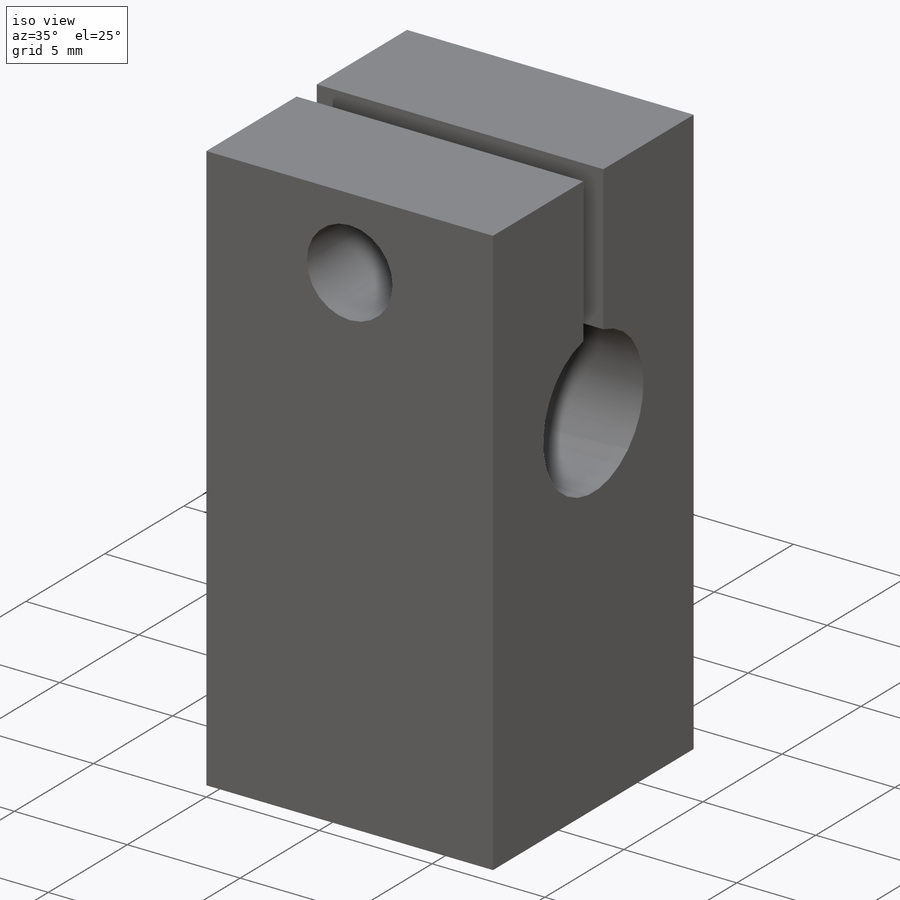
[diagram: iso view]
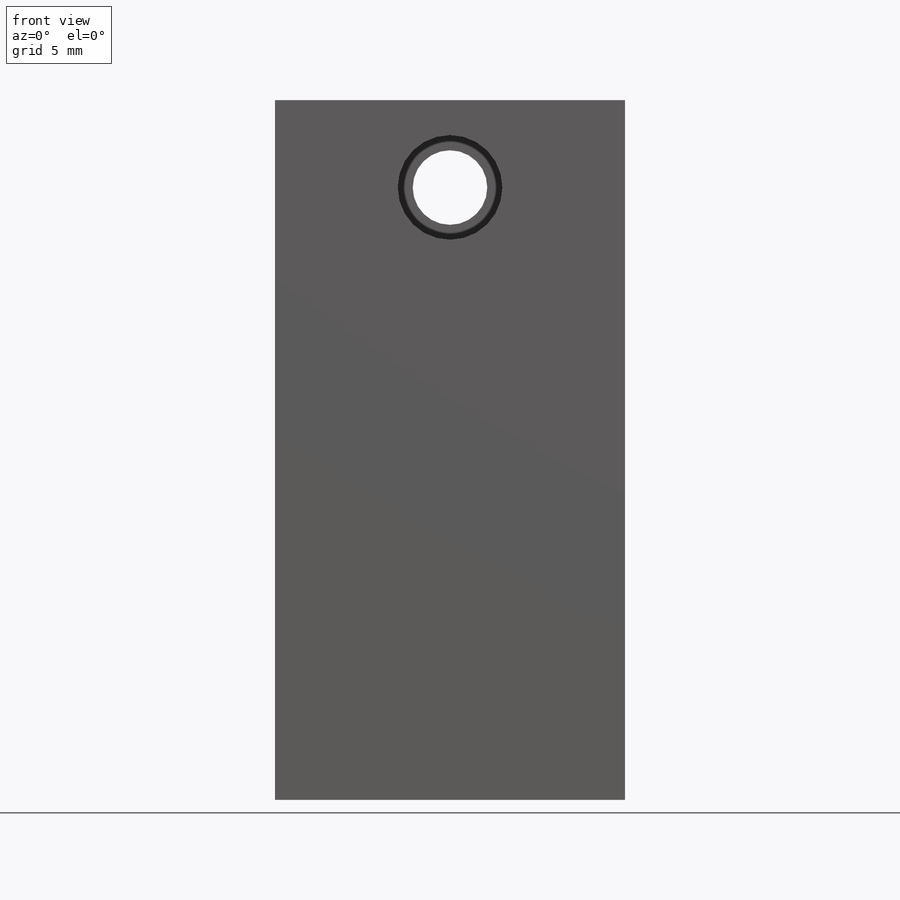
[diagram: front view]
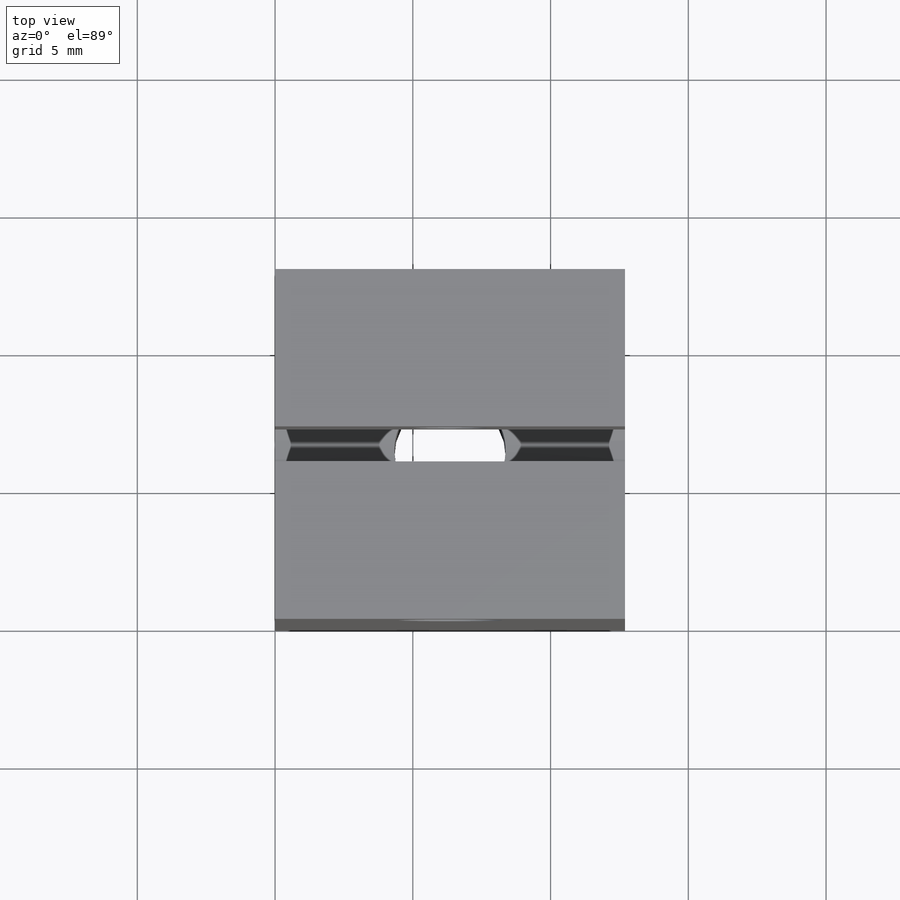
[diagram: top view]
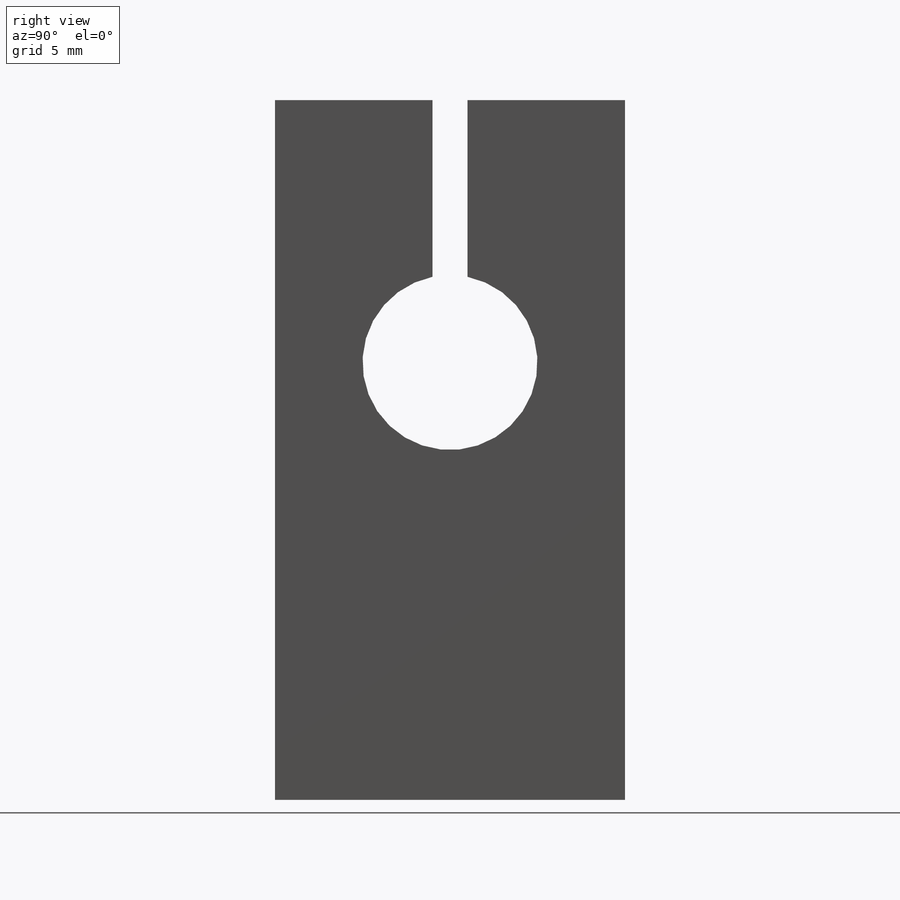
[diagram: right view]
SOLIDWORKS PART (.sldprt)
format: sldprt  version: not decoded by parser v0  size: 273,920 bytes
history: native  units: mm
features: sketch x10, hole x4, material x1, extrude x1, cut_extrude x1 (+11 scaffold rows collapsed)
feature tree (28):
  scaffold x11  (default folders/planes/origin — collapsed)
  material  "6061 Alloy"
  sketch  "Sketch1"  dims[D1=12.7mm D2=12.7mm]
  extrude  "Boss-Extrude1"  Depth=25.4mm
  hole  "1/4 (0.25) Diameter Hole1"  Diameter=6.35mm Depth=12.7mm
  sketch  "Sketch3"  dims[D1=9.525mm]
  sketch  "Sketch2"  dims[hole-wizard template sketch: 61 standard entries collapsed; hole parameters above]
  sketch  "Sketch4"  dims[D1=1.27mm D2=7.62mm]
  cut_extrude  "Cut-Extrude1"  [1 undecoded]
  hole  "Tap Drill for #10-32 Tap1"  Diameter=4.0386mm Depth=12.7mm
  sketch  "Sketch6"
  sketch  "Sketch5"  dims[hole-wizard template sketch: 59 standard entries collapsed; hole parameters kept: c18.Thru Hole Dia.=4.0386mm c18.Thru Hole Depth=12.7mm]
  hole  "#6 Clearance Hole1"  Diameter=3.7973mm Depth=5.715mm
  sketch  "Sketch8"  dims[D1=3.175mm]
  sketch  "Sketch7"  dims[hole-wizard template sketch: 60 standard entries collapsed; hole parameters kept: c18.Thru Hole Depth=5.715mm]
  hole  "Tap Drill for #6-32 Tap1"  Diameter=2.7051mm Depth=5.715mm
  sketch  "Sketch10"  dims[D1=3.175mm]
  sketch  "Sketch9"  dims[hole-wizard template sketch: 60 standard entries collapsed; hole parameters kept: c18.Thru Hole Depth=5.715mm]
decode coverage: 14 of 16 modeling features carry decoded parameters
note: ~ marks probable driven/reference dimensions
note: 1 parameter value undecoded
summary: Diameter pulled from absorbed wizard sketch
note: suppression state not decoded; provenance and decode notes live in map.json
